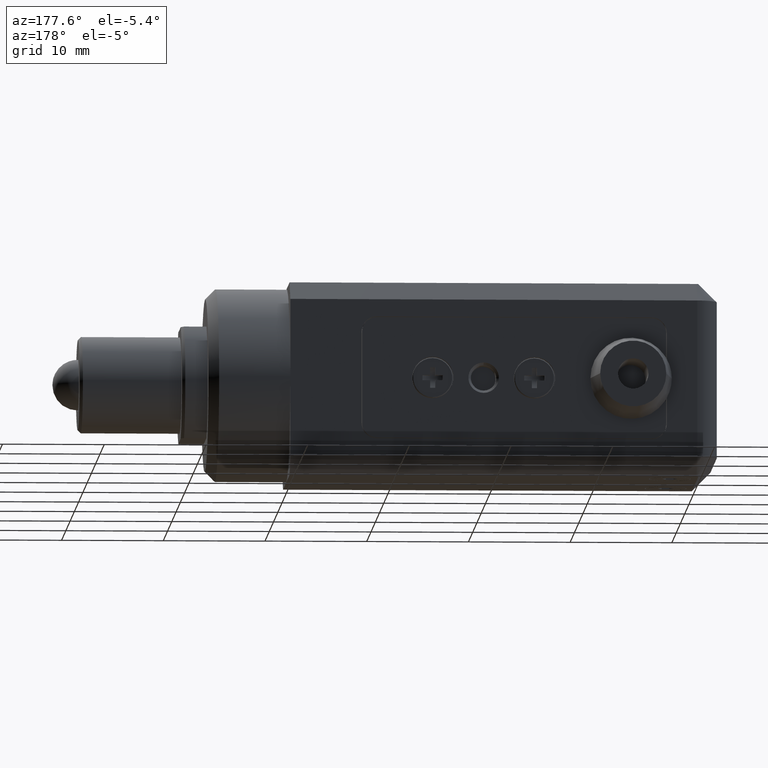
[diagram: clean part render]
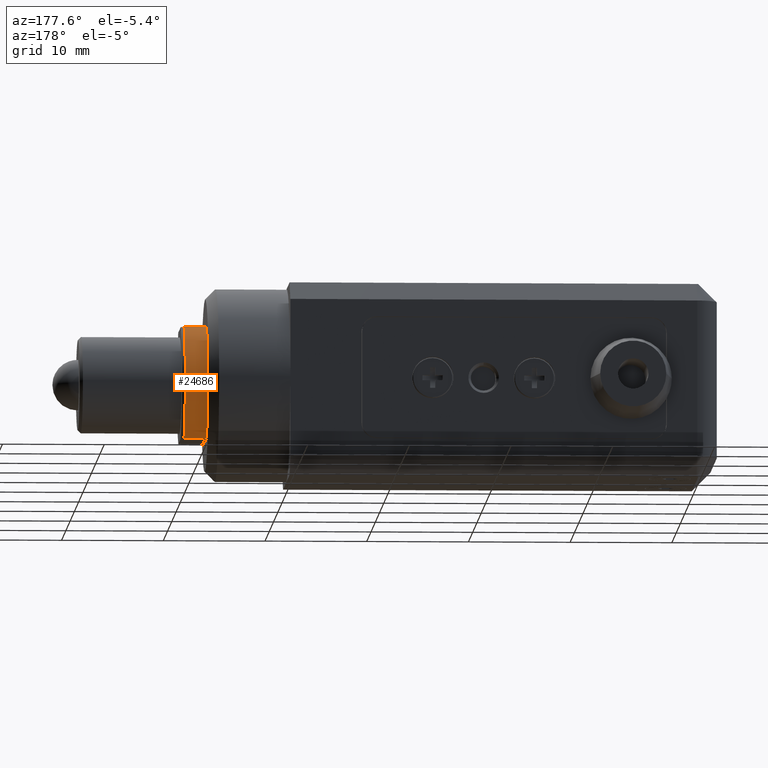
[diagram: same view with one face highlighted and labeled with its STEP entity id]
A machine part, auxiliary view. The second image highlights one B-rep face of the part: STEP entity #24686.
In plain terms, the highlighted cylindrical surface (partial cylindrical patch) has radius 6.5 mm, axis along (-1, 0, 0).
Its self-contained STEP definition (entity closure, byte-faithful):
#968 = VECTOR ( 'NONE', #11422, 1000.000000000000000 ) ;
#1478 = DIRECTION ( 'NONE',  ( -1.000000000000000000, 0.000000000000000000, 0.000000000000000000 ) ) ;
#2023 = EDGE_CURVE ( 'NONE', #3837, #8708, #6590, .T. ) ;
#2417 = CARTESIAN_POINT ( 'NONE',  ( 10.19999999999877183, 0.000000000000000000, 0.000000000000000000 ) ) ;
#3458 = CARTESIAN_POINT ( 'NONE',  ( 8.000000000000000000, 3.464101615137845425, -5.499999999999944045 ) ) ;
#3837 = VERTEX_POINT ( 'NONE', #3458 ) ;
#4238 = VECTOR ( 'NONE', #20536, 1000.000000000000000 ) ;
#4445 = DIRECTION ( 'NONE',  ( -1.000000000000000000, 0.000000000000000000, 0.000000000000000000 ) ) ;
#5198 = CARTESIAN_POINT ( 'NONE',  ( 10.50000000000000000, 3.464101615137878731, 5.500000000000000000 ) ) ;
#5635 = CYLINDRICAL_SURFACE ( 'NONE', #17612, 6.500000000000001776 ) ;
#6007 = CIRCLE ( 'NONE', #12041, 6.500000000000001776 ) ;
#6130 = DIRECTION ( 'NONE',  ( 0.000000000000000000, 0.000000000000000000, 1.000000000000000000 ) ) ;
#6590 = CIRCLE ( 'NONE', #21877, 6.500000000000001776 ) ;
#7274 = LINE ( 'NONE', #14954, #968 ) ;
#7447 = VERTEX_POINT ( 'NONE', #13872 ) ;
#7902 = EDGE_CURVE ( 'NONE', #11126, #3837, #7274, .T. ) ;
#8145 = CARTESIAN_POINT ( 'NONE',  ( 10.20000000001423857, 3.464101615156008229, -5.500000000013031354 ) ) ;
#8708 = VERTEX_POINT ( 'NONE', #13569 ) ;
#9293 = EDGE_CURVE ( 'NONE', #8708, #7447, #14638, .T. ) ;
#11126 = VERTEX_POINT ( 'NONE', #8145 ) ;
#11422 = DIRECTION ( 'NONE',  ( -1.000000000000000000, 0.000000000000000000, 0.000000000000000000 ) ) ;
#11479 = FACE_OUTER_BOUND ( 'NONE', #18069, .T. ) ;
#12041 = AXIS2_PLACEMENT_3D ( 'NONE', #2417, #4445, #17740 ) ;
#12183 = ORIENTED_EDGE ( 'NONE', *, *, #7902, .T. ) ;
#13569 = CARTESIAN_POINT ( 'NONE',  ( 8.000000000000000000, 3.464101615137817891, 5.500000000000000000 ) ) ;
#13872 = CARTESIAN_POINT ( 'NONE',  ( 10.19999999999815898, 3.464101615157535008, 5.500000000031112002 ) ) ;
#14191 = CARTESIAN_POINT ( 'NONE',  ( 8.000000000000000000, 0.000000000000000000, 0.000000000000000000 ) ) ;
#14638 = LINE ( 'NONE', #5198, #4238 ) ;
#14954 = CARTESIAN_POINT ( 'NONE',  ( 21.52499999999999858, 3.464101615137933354, -5.499999999999889866 ) ) ;
#15782 = EDGE_CURVE ( 'NONE', #7447, #11126, #6007, .T. ) ;
#17612 = AXIS2_PLACEMENT_3D ( 'NONE', #20860, #1478, #19088 ) ;
#17684 = DIRECTION ( 'NONE',  ( 1.000000000000000000, -0.000000000000000000, -0.000000000000000000 ) ) ;
#17740 = DIRECTION ( 'NONE',  ( 0.000000000000000000, 0.000000000000000000, 1.000000000000000000 ) ) ;
#17834 = ORIENTED_EDGE ( 'NONE', *, *, #9293, .T. ) ;
#18069 = EDGE_LOOP ( 'NONE', ( #17834, #22639, #12183, #21949 ) ) ;
#19088 = DIRECTION ( 'NONE',  ( 0.000000000000000000, 0.000000000000000000, 1.000000000000000000 ) ) ;
#20536 = DIRECTION ( 'NONE',  ( 1.000000000000000000, -0.000000000000000000, 0.000000000000000000 ) ) ;
#20860 = CARTESIAN_POINT ( 'NONE',  ( 21.52499999999999858, 0.000000000000000000, 0.000000000000000000 ) ) ;
#21877 = AXIS2_PLACEMENT_3D ( 'NONE', #14191, #17684, #6130 ) ;
#21949 = ORIENTED_EDGE ( 'NONE', *, *, #2023, .T. ) ;
#22639 = ORIENTED_EDGE ( 'NONE', *, *, #15782, .T. ) ;
#24686 = ADVANCED_FACE ( 'NONE', ( #11479 ), #5635, .T. ) ;